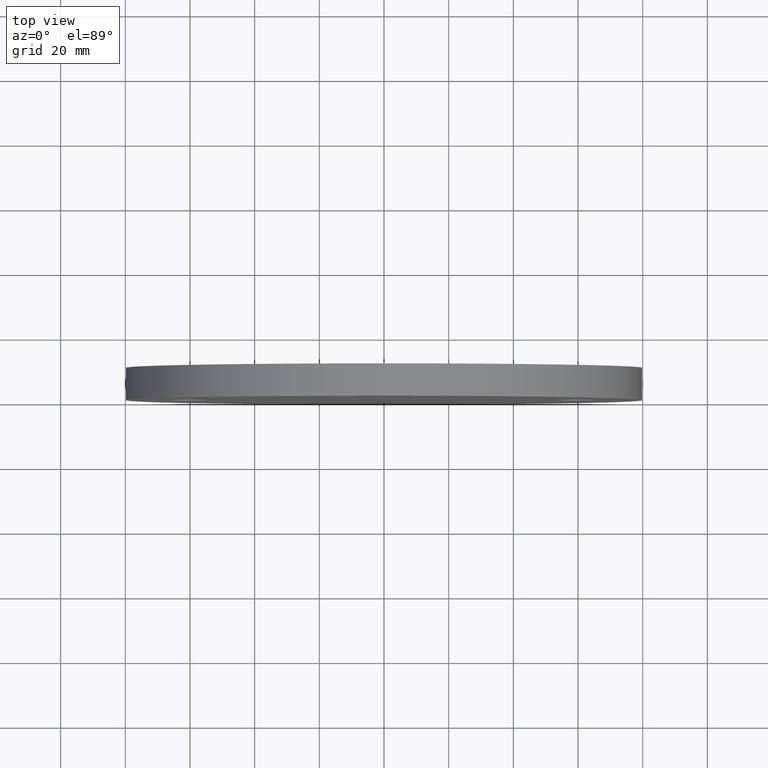
[diagram: clean part render]
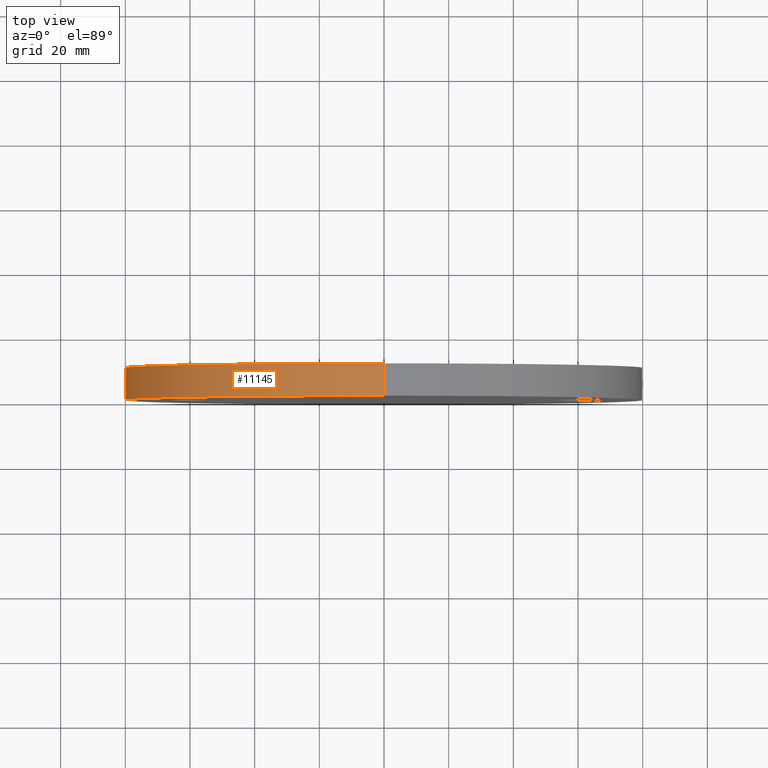
[diagram: same view with one face highlighted and labeled with its STEP entity id]
A machine part, top view. The second image highlights one B-rep face of the part: STEP entity #11145.
In plain terms, the highlighted cylindrical surface (partial cylindrical patch) has radius 80 mm, axis along (-0, -1, -0).
Its self-contained STEP definition (entity closure, byte-faithful):
#507 = VERTEX_POINT ( 'NONE', #9119 ) ;
#685 = AXIS2_PLACEMENT_3D ( 'NONE', #8272, #10858, #10780 ) ;
#1010 = DIRECTION ( 'NONE',  ( 0.0000000000000000000, 1.000000000000000000, 0.0000000000000000000 ) ) ;
#1094 = FACE_OUTER_BOUND ( 'NONE', #1938, .T. ) ;
#1938 = EDGE_LOOP ( 'NONE', ( #6037, #3877, #11122, #4244 ) ) ;
#2568 = CARTESIAN_POINT ( 'NONE',  ( 0.0000000000000000000, 0.0000000000000000000, 0.0000000000000000000 ) ) ;
#2587 = LINE ( 'NONE', #3330, #3681 ) ;
#2732 = DIRECTION ( 'NONE',  ( -0.0000000000000000000, -1.000000000000000000, -0.0000000000000000000 ) ) ;
#3034 = AXIS2_PLACEMENT_3D ( 'NONE', #4451, #2732, #5309 ) ;
#3330 = CARTESIAN_POINT ( 'NONE',  ( 9.797174393178826100E-015, 10.00000000000000000, 80.00000000000000000 ) ) ;
#3579 = AXIS2_PLACEMENT_3D ( 'NONE', #2568, #1010, #7106 ) ;
#3681 = VECTOR ( 'NONE', #9419, 1000.000000000000000 ) ;
#3843 = CIRCLE ( 'NONE', #3579, 80.00000000000000000 ) ;
#3877 = ORIENTED_EDGE ( 'NONE', *, *, #7381, .F. ) ;
#4244 = ORIENTED_EDGE ( 'NONE', *, *, #8990, .T. ) ;
#4381 = LINE ( 'NONE', #9825, #8730 ) ;
#4451 = CARTESIAN_POINT ( 'NONE',  ( 0.0000000000000000000, 10.00000000000000000, 0.0000000000000000000 ) ) ;
#4678 = VERTEX_POINT ( 'NONE', #10873 ) ;
#4790 = DIRECTION ( 'NONE',  ( -0.0000000000000000000, -1.000000000000000000, -0.0000000000000000000 ) ) ;
#5309 = DIRECTION ( 'NONE',  ( 0.0000000000000000000, 0.0000000000000000000, -1.000000000000000000 ) ) ;
#5636 = CARTESIAN_POINT ( 'NONE',  ( 9.797174393178826100E-015, 0.0000000000000000000, 80.00000000000000000 ) ) ;
#5775 = VERTEX_POINT ( 'NONE', #5636 ) ;
#6037 = ORIENTED_EDGE ( 'NONE', *, *, #10075, .F. ) ;
#7106 = DIRECTION ( 'NONE',  ( 0.0000000000000000000, 0.0000000000000000000, 1.000000000000000000 ) ) ;
#7381 = EDGE_CURVE ( 'NONE', #9034, #4678, #8625, .T. ) ;
#7417 = CARTESIAN_POINT ( 'NONE',  ( 0.0000000000000000000, 10.00000000000000000, -80.00000000000000000 ) ) ;
#7900 = CYLINDRICAL_SURFACE ( 'NONE', #3034, 80.00000000000000000 ) ;
#8272 = CARTESIAN_POINT ( 'NONE',  ( 0.0000000000000000000, 10.00000000000000000, 0.0000000000000000000 ) ) ;
#8625 = CIRCLE ( 'NONE', #685, 80.00000000000000000 ) ;
#8730 = VECTOR ( 'NONE', #4790, 1000.000000000000000 ) ;
#8990 = EDGE_CURVE ( 'NONE', #507, #5775, #3843, .T. ) ;
#9034 = VERTEX_POINT ( 'NONE', #7417 ) ;
#9050 = EDGE_CURVE ( 'NONE', #9034, #507, #4381, .T. ) ;
#9119 = CARTESIAN_POINT ( 'NONE',  ( 0.0000000000000000000, 0.0000000000000000000, -80.00000000000000000 ) ) ;
#9419 = DIRECTION ( 'NONE',  ( -0.0000000000000000000, -1.000000000000000000, -0.0000000000000000000 ) ) ;
#9825 = CARTESIAN_POINT ( 'NONE',  ( 0.0000000000000000000, 10.00000000000000000, -80.00000000000000000 ) ) ;
#10075 = EDGE_CURVE ( 'NONE', #4678, #5775, #2587, .T. ) ;
#10780 = DIRECTION ( 'NONE',  ( 0.0000000000000000000, 0.0000000000000000000, 1.000000000000000000 ) ) ;
#10858 = DIRECTION ( 'NONE',  ( 0.0000000000000000000, 1.000000000000000000, 0.0000000000000000000 ) ) ;
#10873 = CARTESIAN_POINT ( 'NONE',  ( 9.797174393178826100E-015, 10.00000000000000000, 80.00000000000000000 ) ) ;
#11122 = ORIENTED_EDGE ( 'NONE', *, *, #9050, .T. ) ;
#11145 = ADVANCED_FACE ( 'NONE', ( #1094 ), #7900, .T. ) ;